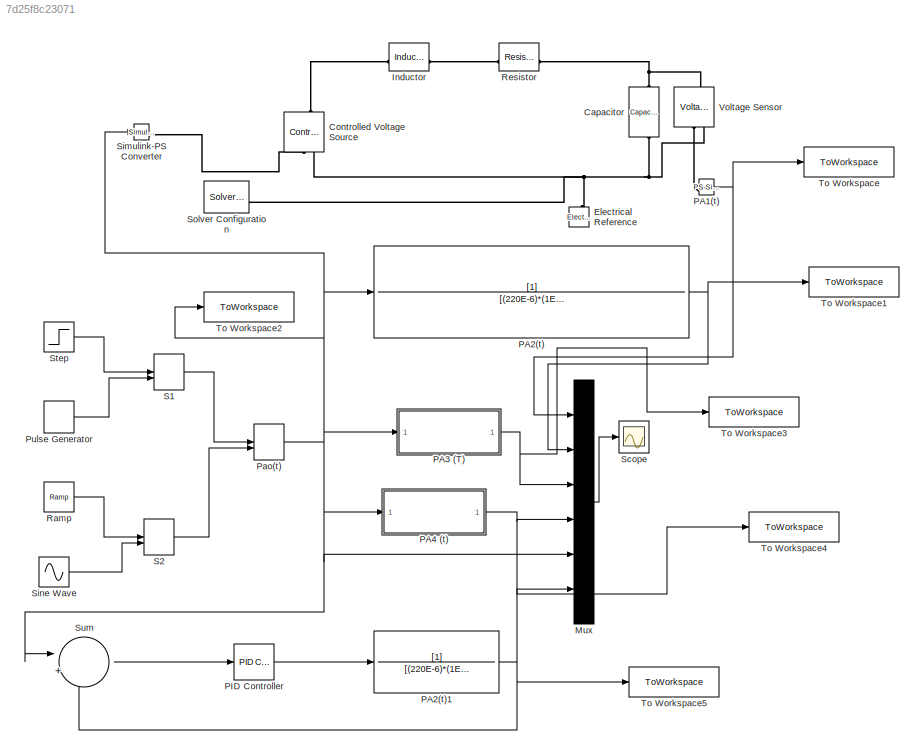
MODEL slx_7d25f8c23071
KIND model
CONFIG AbsTol = auto
CONFIG EnableMultiTasking = off
CONFIG FixedStep = auto
CONFIG MaxStep = 1e-3
CONFIG MinStep = auto
CONFIG RelTol = 1e-3
CONFIG SampleTimeConstraint = Unconstrained
CONFIG SolverName = VariableStepAuto
CONFIG StartTime = 0.0
CONFIG StopTime = 10.0
BLOCK [Reference] Capacitor  REF=fl_lib/Electrical/Electrical Elements/Capacitor
  NameLocation = left
  SourceBlock = fl_lib/Electrical/Electrical Elements/Capacitor
  SourceType = Capacitor
BLOCK [Reference] Controlled Voltage Source  REF=fl_lib/Electrical/Electrical Sources/Controlled Voltage
Source
  NameLocation = right
  SourceBlock = fl_lib/Electrical/Electrical Sources/Controlled Voltage\nSource
  SourceType = Controlled Voltage\nSource
BLOCK [Reference] Electrical Reference  REF=fl_lib/Electrical/Electrical Elements/Electrical Reference
  NameLocation = right
  SourceBlock = fl_lib/Electrical/Electrical Elements/Electrical Reference
  SourceType = Electrical Reference
BLOCK [Reference] Inductor  REF=fl_lib/Electrical/Electrical Elements/Inductor
  SourceBlock = fl_lib/Electrical/Electrical Elements/Inductor
  SourceType = Inductor
BLOCK [Mux] Mux
  DisplayOption = bar
  Inputs = 6
BLOCK [Reference] PA1(t)  REF=nesl_utility/PS-Simulink
Converter
  SourceBlock = nesl_utility/PS-Simulink\nConverter
  SourceType = PS-Simulink\nConverter
BLOCK [TransferFcn] PA2(t)
  Denominator = [(220E-6)*(1E-3),(220E-6)*(10E3),1]
BLOCK [TransferFcn] PA2(t)1
  Denominator = [(220E-6)*(1E-3),(220E-6)*(10E3),1]
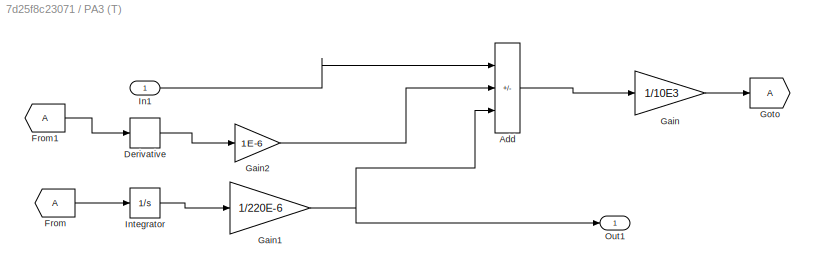
BLOCK [SubSystem] PA3 (T)
BLOCK [Sum] PA3 (T)/Add
  IconShape = rectangular
  Inputs = +--
BLOCK [Derivative] PA3 (T)/Derivative
BLOCK [From] PA3 (T)/From
BLOCK [From] PA3 (T)/From1
BLOCK [Gain] PA3 (T)/Gain
  Gain = 1/10E3
BLOCK [Gain] PA3 (T)/Gain1
  Gain = 1/220E-6
BLOCK [Gain] PA3 (T)/Gain2
  Gain = 1E-6
BLOCK [Goto] PA3 (T)/Goto
BLOCK [Inport] PA3 (T)/In1
BLOCK [Integrator] PA3 (T)/Integrator
BLOCK [Outport] PA3 (T)/Out1
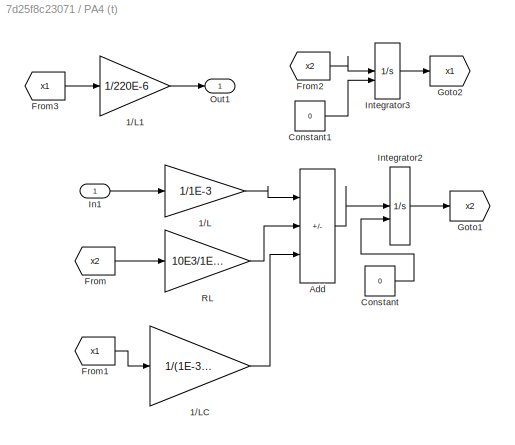
BLOCK [SubSystem] PA4 (t)
BLOCK [Gain] PA4 (t)/1//L
  Gain = 1/1E-3
BLOCK [Gain] PA4 (t)/1//L1
  Gain = 1/220E-6
BLOCK [Gain] PA4 (t)/1//LC
  Gain = 1/(1E-3*220E-6)
BLOCK [Sum] PA4 (t)/Add
  IconShape = rectangular
  Inputs = +--
BLOCK [Constant] PA4 (t)/Constant
  Value = 0
BLOCK [Constant] PA4 (t)/Constant1
  Value = 0
BLOCK [From] PA4 (t)/From
  GotoTag = x2
BLOCK [From] PA4 (t)/From1
  GotoTag = x1
BLOCK [From] PA4 (t)/From2
  GotoTag = x2
BLOCK [From] PA4 (t)/From3
  GotoTag = x1
BLOCK [Goto] PA4 (t)/Goto1
  GotoTag = x2
BLOCK [Goto] PA4 (t)/Goto2
  GotoTag = x1
BLOCK [Inport] PA4 (t)/In1
BLOCK [Integrator] PA4 (t)/Integrator2
  InitialConditionSource = external
BLOCK [Integrator] PA4 (t)/Integrator3
  InitialConditionSource = external
BLOCK [Outport] PA4 (t)/Out1
BLOCK [Gain] PA4 (t)/RL
  Gain = 10E3/1E-3
BLOCK [Reference] PID Controller  REF=slpidlib/PID Controller
  LibrarySourceBlock = simulink/Continuous/PID Controller
  SourceBlock = slpidlib/PID Controller
  SourceType = PID 1dof
BLOCK [ManualSwitch] Pao(t)
  CurrentSetting = 0
BLOCK [DiscretePulseGenerator] Pulse Generator
  Period = 10
  PhaseDelay = 1
  PulseType = Time based
  PulseWidth = 10
BLOCK [Reference] Ramp  REF=simulink/Sources/Ramp
  SourceBlock = simulink/Sources/Ramp
  SourceType = Ramp
BLOCK [Reference] Resistor  REF=fl_lib/Electrical/Electrical Elements/Resistor
  SourceBlock = fl_lib/Electrical/Electrical Elements/Resistor
  SourceType = Resistor
BLOCK [ManualSwitch] S1
  CurrentSetting = 0
BLOCK [ManualSwitch] S2
  CurrentSetting = 0
BLOCK [Scope] Scope
  Floating = off
  NumInputPorts = 1
  ScopeSpecificationString = Simulink.scopes.TimeScopeBlockCfg('CurrentConfiguration', extmgr.ConfigurationSet(extmgr.Configuration('Core','General UI',true,'FigureColor',[0.937254901960784 0.866666666666667 0.866666666666667]),extmgr.Configuration('Core','Source UI',true),extmgr.Configuration('Sources','WiredSimulink',true),extmgr.Configuration('Visuals','Time Domain',true,'SerializedDisplays',{struct('MinYLimReal','-0.42273...<+2517ch>
BLOCK [Reference] Simulink-PS Converter  REF=nesl_utility/Simulink-PS
Converter
  SourceBlock = nesl_utility/Simulink-PS\nConverter
  SourceType = Simulink-PS\nConverter
BLOCK [Sin] Sine Wave
  Frequency = pi/2
  SampleTime = 0
BLOCK [Reference] Solver Configuration  REF=nesl_utility/Solver
Configuration
  SourceBlock = nesl_utility/Solver\nConfiguration
  SourceType = Solver\nConfiguration
BLOCK [Step] Step
  Before = 1
  SampleTime = 0
  Time = 0
BLOCK [Sum] Sum
  Inputs = |+-
BLOCK [ToWorkspace] To Workspace
  FixptAsFi = on
  MaxDataPoints = inf
  SampleTime = -1
  VariableName = PA1
BLOCK [ToWorkspace] To Workspace1
  FixptAsFi = on
  MaxDataPoints = inf
  SampleTime = -1
  VariableName = PA2
BLOCK [ToWorkspace] To Workspace2
  FixptAsFi = on
  MaxDataPoints = inf
  SampleTime = -1
  VariableName = Pao
BLOCK [ToWorkspace] To Workspace3
  FixptAsFi = on
  MaxDataPoints = inf
  SampleTime = -1
  VariableName = PA3
BLOCK [ToWorkspace] To Workspace4
  FixptAsFi = on
  MaxDataPoints = inf
  SampleTime = -1
  VariableName = PA4
BLOCK [ToWorkspace] To Workspace5
  FixptAsFi = on
  MaxDataPoints = inf
  SampleTime = -1
  VariableName = PID
BLOCK [Reference] Voltage Sensor  REF=fl_lib/Electrical/Electrical Sensors/Voltage Sensor
  NameLocation = right
  SourceBlock = fl_lib/Electrical/Electrical Sensors/Voltage Sensor
  SourceType = Voltage Sensor
LINE Mux:1 -> Scope:1
NET PA1(t):1 -> Mux:1, To Workspace:1
NET PA2(t)1:1 -> Mux:6, Sum:2, To Workspace5:1
NET PA2(t):1 -> Mux:2, To Workspace1:1
LINE PA3 (T)/Add:1 -> PA3 (T)/Gain:1
LINE PA3 (T)/Derivative:1 -> PA3 (T)/Gain2:1
LINE PA3 (T)/From1:1 -> PA3 (T)/Derivative:1
LINE PA3 (T)/From:1 -> PA3 (T)/Integrator:1
NET PA3 (T)/Gain1:1 -> PA3 (T)/Add:3, PA3 (T)/Out1:1
LINE PA3 (T)/Gain2:1 -> PA3 (T)/Add:2
LINE PA3 (T)/Gain:1 -> PA3 (T)/Goto:1
LINE PA3 (T)/In1:1 -> PA3 (T)/Add:1
LINE PA3 (T)/Integrator:1 -> PA3 (T)/Gain1:1
NET PA3 (T):1 -> Mux:3, To Workspace3:1
LINE PA4 (t)/1//L1:1 -> PA4 (t)/Out1:1
LINE PA4 (t)/1//L:1 -> PA4 (t)/Add:1
LINE PA4 (t)/1//LC:1 -> PA4 (t)/Add:3
LINE PA4 (t)/Add:1 -> PA4 (t)/Integrator2:1
LINE PA4 (t)/Constant1:1 -> PA4 (t)/Integrator3:2
LINE PA4 (t)/Constant:1 -> PA4 (t)/Integrator2:2
LINE PA4 (t)/From1:1 -> PA4 (t)/1//LC:1
LINE PA4 (t)/From2:1 -> PA4 (t)/Integrator3:1
LINE PA4 (t)/From3:1 -> PA4 (t)/1//L1:1
LINE PA4 (t)/From:1 -> PA4 (t)/RL:1
LINE PA4 (t)/In1:1 -> PA4 (t)/1//L:1
LINE PA4 (t)/Integrator2:1 -> PA4 (t)/Goto1:1
LINE PA4 (t)/Integrator3:1 -> PA4 (t)/Goto2:1
LINE PA4 (t)/RL:1 -> PA4 (t)/Add:2
NET PA4 (t):1 -> Mux:4, To Workspace4:1
LINE PID Controller:1 -> PA2(t)1:1
NET Pao(t):1 -> Mux:5, PA2(t):1, PA3 (T):1, PA4 (t):1, Simulink-PS Converter:1, Sum:1, To Workspace2:1
LINE Pulse Generator:1 -> S1:2
LINE Ramp:1 -> S2:1
LINE S1:1 -> Pao(t):1
LINE S2:1 -> Pao(t):2
LINE Sine Wave:1 -> S2:2
LINE Step:1 -> S1:1
LINE Sum:1 -> PID Controller:1
PNET net1: Capacitor:LConn1 -- Resistor:RConn1 -- Voltage Sensor:LConn1
PNET net2: Capacitor:RConn1 -- Controlled Voltage Source:RConn2 -- Electrical Reference:LConn1 -- Solver Configuration:RConn1 -- Voltage Sensor:RConn2
PLINE Controlled Voltage Source:LConn1 -- Inductor:LConn1
PLINE Controlled Voltage Source:RConn1 -- Simulink-PS Converter:RConn1
PLINE Inductor:RConn1 -- Resistor:LConn1
PLINE PA1(t):LConn1 -- Voltage Sensor:RConn1
note: NET lines group one-source signal fan-out (src -> all destinations, sorted); 1:1 wires keep LINE; PNET lines group multi-terminal physical nets as a canonical sorted terminal list (undirected conserving connections); 2-terminal nets keep the pairwise PLINE form
